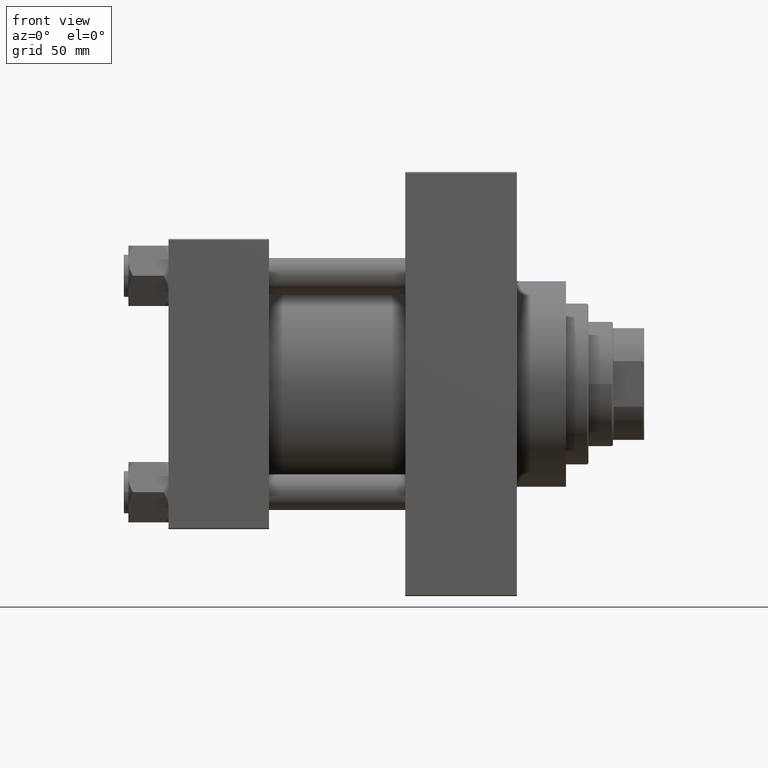
[diagram: clean part render]
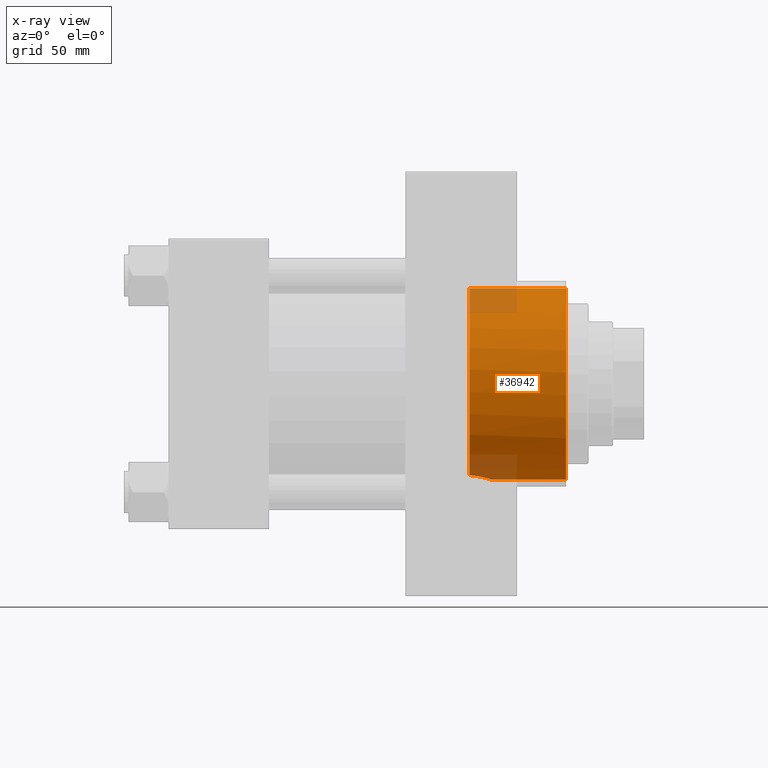
[diagram: x-ray — body ghosted, one internal face saturated and labeled with its STEP entity id]
A machine part, front view, then the same camera in x-ray: the body is ghosted and one INTERNAL B-rep face — a face not visible from any outside direction — is saturated and labeled: STEP entity #36942.
In plain terms, the highlighted cylindrical surface (partial cylindrical patch) has radius 42.75 mm, axis along (1, 0, 0).
Its self-contained STEP definition (entity closure, byte-faithful):
#1225 = ORIENTED_EDGE ( 'NONE', *, *, #27682, .T. ) ;
#1281 = CARTESIAN_POINT ( 'NONE',  ( 139.6754924569602565, -9.999825575006545009, -41.56700312386077911 ) ) ;
#2238 = CARTESIAN_POINT ( 'NONE',  ( 143.2993960643597404, -4.860054019011700532, -42.47412520213219267 ) ) ;
#5141 = CARTESIAN_POINT ( 'NONE',  ( 137.9822741085590394, -11.24766306689394213, -41.24590971077732604 ) ) ;
#5612 = CARTESIAN_POINT ( 'NONE',  ( 144.2200000000000273, -0.3557163794469145324, -42.75000000000000711 ) ) ;
#6456 = DIRECTION ( 'NONE',  ( 1.000000000000000000, -0.000000000000000000, -0.000000000000000000 ) ) ;
#6511 = EDGE_CURVE ( 'NONE', #24681, #41578, #20383, .T. ) ;
#7485 = FACE_OUTER_BOUND ( 'NONE', #8884, .T. ) ;
#8030 = AXIS2_PLACEMENT_3D ( 'NONE', #43959, #25381, #13550 ) ;
#8762 = CARTESIAN_POINT ( 'NONE',  ( 144.1041229325396671, -1.782171368608850059, -42.71427362908442404 ) ) ;
#8884 = EDGE_LOOP ( 'NONE', ( #24569, #1225, #13799, #11860, #21292 ) ) ;
#11860 = ORIENTED_EDGE ( 'NONE', *, *, #31716, .F. ) ;
#13376 = CARTESIAN_POINT ( 'NONE',  ( 134.7400000000000091, 5.235365066354935472E-15, 42.75000000000000000 ) ) ;
#13550 = DIRECTION ( 'NONE',  ( 0.000000000000000000, 0.000000000000000000, -1.000000000000000000 ) ) ;
#13591 = VERTEX_POINT ( 'NONE', #18135 ) ;
#13799 = ORIENTED_EDGE ( 'NONE', *, *, #20326, .T. ) ;
#14362 = LINE ( 'NONE', #22335, #39761 ) ;
#16020 = CARTESIAN_POINT ( 'NONE',  ( 136.0881855045064697, -12.22213168823644125, -40.96686556097022702 ) ) ;
#16821 = DIRECTION ( 'NONE',  ( 0.000000000000000000, 0.000000000000000000, -1.000000000000000000 ) ) ;
#16824 = AXIS2_PLACEMENT_3D ( 'NONE', #33323, #29707, #40589 ) ;
#18135 = CARTESIAN_POINT ( 'NONE',  ( 178.0000000000000000, 0.000000000000000000, -42.75000000000000000 ) ) ;
#19466 = CARTESIAN_POINT ( 'NONE',  ( 178.0000000000000000, 5.235365066354935472E-15, 42.75000000000000000 ) ) ;
#19472 = AXIS2_PLACEMENT_3D ( 'NONE', #22473, #31552, #16821 ) ;
#19645 = CARTESIAN_POINT ( 'NONE',  ( 139.1351602650896098, -10.44419664956251914, -41.45664902860858092 ) ) ;
#19884 = CARTESIAN_POINT ( 'NONE',  ( 142.0015928053664140, -7.364010740346975226, -42.11487085516267115 ) ) ;
#20121 = CARTESIAN_POINT ( 'NONE',  ( 141.1575723231069333, -8.490431257591518843, -41.90230994099357531 ) ) ;
#20326 = EDGE_CURVE ( 'NONE', #38468, #13591, #37209, .T. ) ;
#20362 = CARTESIAN_POINT ( 'NONE',  ( 143.0198534454123660, -5.515287097378191561, -42.39402133541480566 ) ) ;
#20383 = CIRCLE ( 'NONE', #8030, 42.75000000000000000 ) ;
#21292 = ORIENTED_EDGE ( 'NONE', *, *, #29698, .T. ) ;
#22335 = CARTESIAN_POINT ( 'NONE',  ( 134.7400000000000091, 5.235365066354935472E-15, 42.75000000000000000 ) ) ;
#22473 = CARTESIAN_POINT ( 'NONE',  ( 178.0000000000000000, 0.000000000000000000, 0.000000000000000000 ) ) ;
#23991 = CARTESIAN_POINT ( 'NONE',  ( 140.6852196200359231, -9.025364359016290194, -41.78941323369598848 ) ) ;
#24400 = VECTOR ( 'NONE', #6456, 1000.000000000000000 ) ;
#24569 = ORIENTED_EDGE ( 'NONE', *, *, #6511, .F. ) ;
#24681 = VERTEX_POINT ( 'NONE', #13376 ) ;
#25381 = DIRECTION ( 'NONE',  ( 1.000000000000000000, 0.000000000000000000, 0.000000000000000000 ) ) ;
#25480 = DIRECTION ( 'NONE',  ( 1.000000000000000000, -0.000000000000000000, -0.000000000000000000 ) ) ;
#27127 = CARTESIAN_POINT ( 'NONE',  ( 144.2200000000000273, 8.110476181803527624E-27, -42.75000000000000000 ) ) ;
#27609 = CARTESIAN_POINT ( 'NONE',  ( 143.7629584476920002, -3.518170577613228822, -42.61034067485236676 ) ) ;
#27682 = EDGE_CURVE ( 'NONE', #24681, #38468, #14362, .T. ) ;
#27837 = CARTESIAN_POINT ( 'NONE',  ( 143.9325276923767092, -2.832175481623199875, -42.66183901135580925 ) ) ;
#28075 = B_SPLINE_CURVE_WITH_KNOTS ( 'NONE', 3,
 ( #27127, #5612, #41846, #35325, #8762, #27837, #27609, #37990, #2238, #20362, #46190, #34362, #19884, #20121, #23991, #1281, #19645, #5141, #45702, #16020, #30744, #42572 ),
 .UNSPECIFIED., .F., .F.,
 ( 4, 2, 2, 2, 2, 2, 2, 2, 2, 2, 4 ),
 ( 0.01702171439019720470, 0.01808348912762104341, 0.01914526386504487865, 0.02126881333989255607, 0.02233058807731639478, 0.02339236281474023349, 0.02551591228958795254, 0.02763946176443567507, 0.02976301123928339759, 0.03188656071413111665, 0.03401011018897883570 ),
 .UNSPECIFIED. ) ;
#29698 = EDGE_CURVE ( 'NONE', #36573, #41578, #28075, .T. ) ;
#29707 = DIRECTION ( 'NONE',  ( 1.000000000000000000, -0.000000000000000000, -0.000000000000000000 ) ) ;
#30744 = CARTESIAN_POINT ( 'NONE',  ( 135.4263400167580187, -12.47749807280258416, -40.88911195506445750 ) ) ;
#31164 = CARTESIAN_POINT ( 'NONE',  ( 134.7400000000000091, -12.67993690836037501, -40.82623788692757216 ) ) ;
#31552 = DIRECTION ( 'NONE',  ( 1.000000000000000000, 0.000000000000000000, 0.000000000000000000 ) ) ;
#31716 = EDGE_CURVE ( 'NONE', #36573, #13591, #36635, .T. ) ;
#33323 = CARTESIAN_POINT ( 'NONE',  ( 134.7400000000000091, 0.000000000000000000, 0.000000000000000000 ) ) ;
#34362 = CARTESIAN_POINT ( 'NONE',  ( 142.3763861193419302, -6.770732795595002074, -42.21512903942316086 ) ) ;
#35325 = CARTESIAN_POINT ( 'NONE',  ( 144.1474619350562136, -1.428652546488344388, -42.72761509841831895 ) ) ;
#36573 = VERTEX_POINT ( 'NONE', #37965 ) ;
#36635 = LINE ( 'NONE', #43405, #24400 ) ;
#36942 = ADVANCED_FACE ( 'NONE', ( #7485 ), #41301, .F. ) ;
#37209 = CIRCLE ( 'NONE', #19472, 42.75000000000000000 ) ;
#37965 = CARTESIAN_POINT ( 'NONE',  ( 144.2200000000000273, 8.110476181803527624E-27, -42.75000000000000000 ) ) ;
#37990 = CARTESIAN_POINT ( 'NONE',  ( 143.4260137807292210, -4.526382623994726018, -42.51103856060491637 ) ) ;
#38468 = VERTEX_POINT ( 'NONE', #19466 ) ;
#39761 = VECTOR ( 'NONE', #25480, 1000.000000000000000 ) ;
#40589 = DIRECTION ( 'NONE',  ( 0.000000000000000000, 0.000000000000000000, -1.000000000000000000 ) ) ;
#41301 = CYLINDRICAL_SURFACE ( 'NONE', #16824, 42.75000000000000000 ) ;
#41578 = VERTEX_POINT ( 'NONE', #31164 ) ;
#41846 = CARTESIAN_POINT ( 'NONE',  ( 144.2055487969409455, -0.7143419376948628718, -42.74552439370961565 ) ) ;
#42572 = CARTESIAN_POINT ( 'NONE',  ( 134.7400000000000091, -12.67993690836037501, -40.82623788692757216 ) ) ;
#43405 = CARTESIAN_POINT ( 'NONE',  ( 134.7400000000000091, 0.000000000000000000, -42.75000000000000000 ) ) ;
#43959 = CARTESIAN_POINT ( 'NONE',  ( 134.7400000000000091, 0.000000000000000000, 0.000000000000000000 ) ) ;
#45702 = CARTESIAN_POINT ( 'NONE',  ( 137.3650373963749018, -11.60846388096253712, -41.14496498017211223 ) ) ;
#46190 = CARTESIAN_POINT ( 'NONE',  ( 142.8678695714943103, -5.834913689629369848, -42.35109966501106271 ) ) ;